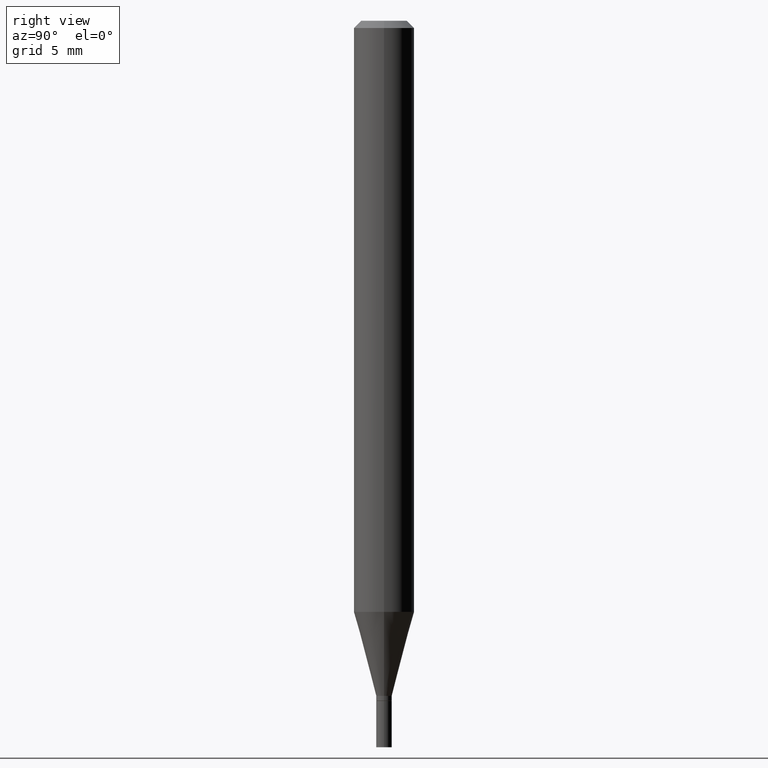
[diagram: clean part render]
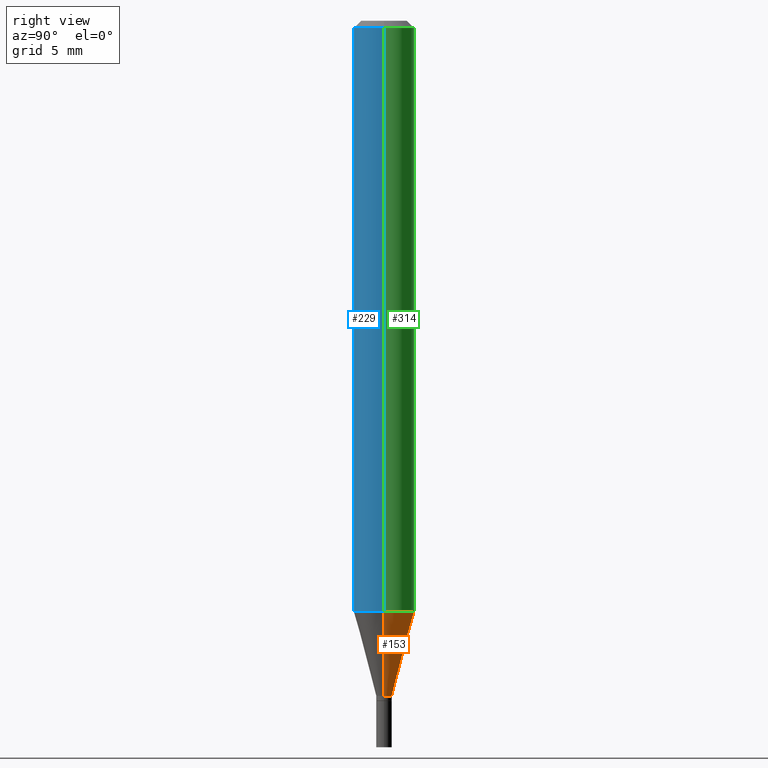
[diagram: same view with three faces highlighted in distinct colors, each labeled with its STEP entity id]
A machine part, right view with three faces highlighted in distinct colors.
Their STEP definitions:

[orange] entity #153 — the highlighted conical surface has half-angle 15 deg.
#5 = DIRECTION ( 'NONE',  ( 0.2588190451025213501, 1.565188264969621968E-15, 0.9659258262890682012 ) ) ;
#31 = CARTESIAN_POINT ( 'NONE',  ( 0.01599999999999992401, -4.978852389190325393E-15, -1.394000000000000128 ) ) ;
#34 = ORIENTED_EDGE ( 'NONE', *, *, #198, .T. ) ;
#42 = VERTEX_POINT ( 'NONE', #52 ) ;
#52 = CARTESIAN_POINT ( 'NONE',  ( -0.01599999999999992401, -4.285280493868398751E-15, -1.394000000000000128 ) ) ;
#63 = CARTESIAN_POINT ( 'NONE',  ( -0.01599999999999992401, -4.753438148625730668E-15, -1.394000000000000128 ) ) ;
#83 = VERTEX_POINT ( 'NONE', #332 ) ;
#97 = LINE ( 'NONE', #63, #150 ) ;
#100 = FACE_OUTER_BOUND ( 'NONE', #298, .T. ) ;
#102 = LINE ( 'NONE', #31, #322 ) ;
#119 = ORIENTED_EDGE ( 'NONE', *, *, #372, .F. ) ;
#150 = VECTOR ( 'NONE', #330, 39.37007874015747433 ) ;
#153 = ADVANCED_FACE ( 'NONE', ( #100 ), #451, .T. ) ;
#178 = CARTESIAN_POINT ( 'NONE',  ( 0.01599999999999992401, -4.978852389190325393E-15, -1.394000000000000128 ) ) ;
#182 = AXIS2_PLACEMENT_3D ( 'NONE', #228, #375, #274 ) ;
#190 = EDGE_CURVE ( 'NONE', #373, #42, #277, .T. ) ;
#198 = EDGE_CURVE ( 'NONE', #42, #83, #97, .T. ) ;
#200 = ORIENTED_EDGE ( 'NONE', *, *, #190, .T. ) ;
#204 = ORIENTED_EDGE ( 'NONE', *, *, #439, .F. ) ;
#210 = DIRECTION ( 'NONE',  ( 1.000000000000000000, -6.982962677686244622E-15, 0.000000000000000000 ) ) ;
#212 = DIRECTION ( 'NONE',  ( -2.445468806185136597E-29, 3.491481338843145583E-15, 1.000000000000000000 ) ) ;
#222 = AXIS2_PLACEMENT_3D ( 'NONE', #394, #358, #210 ) ;
#228 = CARTESIAN_POINT ( 'NONE',  ( 2.984595972587221379E-29, -4.261212048961128661E-15, -1.220459637448047641 ) ) ;
#250 = DIRECTION ( 'NONE',  ( 1.000000000000000000, -6.982962677686244622E-15, 0.000000000000000000 ) ) ;
#274 = DIRECTION ( 'NONE',  ( 1.000000000000000000, -6.982962677686262766E-15, 0.000000000000000000 ) ) ;
#277 = CIRCLE ( 'NONE', #222, 0.01599999999999992401 ) ;
#290 = CIRCLE ( 'NONE', #182, 0.06250000000000000000 ) ;
#298 = EDGE_LOOP ( 'NONE', ( #200, #34, #119, #204 ) ) ;
#322 = VECTOR ( 'NONE', #5, 39.37007874015747433 ) ;
#330 = DIRECTION ( 'NONE',  ( -0.2588190451025213501, 5.211531920934551042E-15, 0.9659258262890682012 ) ) ;
#332 = CARTESIAN_POINT ( 'NONE',  ( -0.06250000000000000000, -3.817122839111066834E-15, -1.220459637448047641 ) ) ;
#349 = VERTEX_POINT ( 'NONE', #419 ) ;
#355 = CARTESIAN_POINT ( 'NONE',  ( 3.408983515822080869E-29, -4.867124986347346010E-15, -1.394000000000000128 ) ) ;
#358 = DIRECTION ( 'NONE',  ( -2.445468806185136597E-29, 3.491481338843145583E-15, 1.000000000000000000 ) ) ;
#372 = EDGE_CURVE ( 'NONE', #349, #83, #290, .T. ) ;
#373 = VERTEX_POINT ( 'NONE', #178 ) ;
#375 = DIRECTION ( 'NONE',  ( -2.445468806185136597E-29, 3.491481338843145583E-15, 1.000000000000000000 ) ) ;
#394 = CARTESIAN_POINT ( 'NONE',  ( 3.408983515822080869E-29, -4.867124986347346010E-15, -1.394000000000000128 ) ) ;
#419 = CARTESIAN_POINT ( 'NONE',  ( 0.06250000000000000000, -4.697647216316520331E-15, -1.220459637448047641 ) ) ;
#439 = EDGE_CURVE ( 'NONE', #373, #349, #102, .T. ) ;
#445 = AXIS2_PLACEMENT_3D ( 'NONE', #355, #212, #250 ) ;
#451 = CONICAL_SURFACE ( 'NONE', #445, 0.01599999999999992401, 0.2617993877991500740 ) ;

[blue] entity #229 — the highlighted cylindrical surface (edge-blend (fillet) strip) has radius 1.5875 mm, axis along (-0, 0, 1).
#8 = CARTESIAN_POINT ( 'NONE',  ( 2.984595972587221379E-29, -4.261212048961128661E-15, -1.220459637448047641 ) ) ;
#37 = AXIS2_PLACEMENT_3D ( 'NONE', #246, #363, #57 ) ;
#38 = VECTOR ( 'NONE', #403, 39.37007874015748143 ) ;
#56 = LINE ( 'NONE', #463, #248 ) ;
#57 = DIRECTION ( 'NONE',  ( 1.000000000000000000, -6.982962677686266711E-15, 4.876176775795935793E-29 ) ) ;
#68 = CIRCLE ( 'NONE', #209, 0.06250000000000000000 ) ;
#72 = ORIENTED_EDGE ( 'NONE', *, *, #294, .F. ) ;
#83 = VERTEX_POINT ( 'NONE', #332 ) ;
#114 = ORIENTED_EDGE ( 'NONE', *, *, #151, .T. ) ;
#115 = DIRECTION ( 'NONE',  ( 1.000000000000000000, -6.982962677686262766E-15, 0.000000000000000000 ) ) ;
#139 = CARTESIAN_POINT ( 'NONE',  ( -0.06250000000000000000, -1.712702924671825451E-15, -0.01499999999999999944 ) ) ;
#147 = DIRECTION ( 'NONE',  ( -2.445468806185136597E-29, 3.491481338843145583E-15, 1.000000000000000000 ) ) ;
#148 = EDGE_LOOP ( 'NONE', ( #381, #386, #114, #72 ) ) ;
#151 = EDGE_CURVE ( 'NONE', #349, #196, #56, .T. ) ;
#155 = DIRECTION ( 'NONE',  ( -2.445468806185136597E-29, 3.491481338843145583E-15, 1.000000000000000000 ) ) ;
#196 = VERTEX_POINT ( 'NONE', #286 ) ;
#209 = AXIS2_PLACEMENT_3D ( 'NONE', #8, #155, #115 ) ;
#215 = FACE_OUTER_BOUND ( 'NONE', #148, .T. ) ;
#226 = VERTEX_POINT ( 'NONE', #139 ) ;
#229 = ADVANCED_FACE ( 'NONE', ( #215 ), #254, .T. ) ;
#246 = CARTESIAN_POINT ( 'NONE',  ( 0.000000000000000000, 0.000000000000000000, 0.000000000000000000 ) ) ;
#247 = DIRECTION ( 'NONE',  ( -2.445468806185136877E-29, 3.491481338843145188E-15, 1.000000000000000000 ) ) ;
#248 = VECTOR ( 'NONE', #247, 39.37007874015748143 ) ;
#254 = CYLINDRICAL_SURFACE ( 'NONE', #37, 0.06250000000000000000 ) ;
#286 = CARTESIAN_POINT ( 'NONE',  ( 0.06250000000000000000, -4.888073874380388472E-16, -0.01499999999999999944 ) ) ;
#288 = CIRCLE ( 'NONE', #413, 0.06250000000000000000 ) ;
#294 = EDGE_CURVE ( 'NONE', #226, #196, #288, .T. ) ;
#296 = DIRECTION ( 'NONE',  ( 1.000000000000000000, -6.982962677686266711E-15, 0.000000000000000000 ) ) ;
#332 = CARTESIAN_POINT ( 'NONE',  ( -0.06250000000000000000, -3.817122839111066834E-15, -1.220459637448047641 ) ) ;
#345 = CARTESIAN_POINT ( 'NONE',  ( 3.668203209277705088E-31, -5.237222008264718399E-17, -0.01499999999999999944 ) ) ;
#347 = EDGE_CURVE ( 'NONE', #83, #349, #68, .T. ) ;
#349 = VERTEX_POINT ( 'NONE', #419 ) ;
#363 = DIRECTION ( 'NONE',  ( -2.445468806185136597E-29, 3.491481338843145583E-15, 1.000000000000000000 ) ) ;
#381 = ORIENTED_EDGE ( 'NONE', *, *, #452, .F. ) ;
#386 = ORIENTED_EDGE ( 'NONE', *, *, #347, .T. ) ;
#403 = DIRECTION ( 'NONE',  ( -2.445468806185136877E-29, 3.491481338843145188E-15, 1.000000000000000000 ) ) ;
#406 = CARTESIAN_POINT ( 'NONE',  ( -0.06250000000000000000, 4.440892098500626162E-16, -3.074334431409316114E-30 ) ) ;
#413 = AXIS2_PLACEMENT_3D ( 'NONE', #345, #147, #296 ) ;
#419 = CARTESIAN_POINT ( 'NONE',  ( 0.06250000000000000000, -4.697647216316520331E-15, -1.220459637448047641 ) ) ;
#444 = LINE ( 'NONE', #406, #38 ) ;
#452 = EDGE_CURVE ( 'NONE', #83, #226, #444, .T. ) ;
#463 = CARTESIAN_POINT ( 'NONE',  ( 0.06250000000000000000, -4.364351673553916694E-16, 3.047610484872459871E-30 ) ) ;

[green] entity #314 — the highlighted cylindrical surface (edge-blend (fillet) strip) has radius 1.5875 mm, axis along (-0, 0, 1).
#13 = DIRECTION ( 'NONE',  ( -2.445468806185136597E-29, 3.491481338843145583E-15, 1.000000000000000000 ) ) ;
#38 = VECTOR ( 'NONE', #403, 39.37007874015748143 ) ;
#49 = EDGE_CURVE ( 'NONE', #196, #226, #242, .T. ) ;
#56 = LINE ( 'NONE', #463, #248 ) ;
#83 = VERTEX_POINT ( 'NONE', #332 ) ;
#136 = CYLINDRICAL_SURFACE ( 'NONE', #173, 0.06250000000000000000 ) ;
#139 = CARTESIAN_POINT ( 'NONE',  ( -0.06250000000000000000, -1.712702924671825451E-15, -0.01499999999999999944 ) ) ;
#151 = EDGE_CURVE ( 'NONE', #349, #196, #56, .T. ) ;
#173 = AXIS2_PLACEMENT_3D ( 'NONE', #272, #13, #232 ) ;
#182 = AXIS2_PLACEMENT_3D ( 'NONE', #228, #375, #274 ) ;
#196 = VERTEX_POINT ( 'NONE', #286 ) ;
#199 = ORIENTED_EDGE ( 'NONE', *, *, #49, .F. ) ;
#219 = ORIENTED_EDGE ( 'NONE', *, *, #452, .T. ) ;
#221 = ORIENTED_EDGE ( 'NONE', *, *, #151, .F. ) ;
#226 = VERTEX_POINT ( 'NONE', #139 ) ;
#228 = CARTESIAN_POINT ( 'NONE',  ( 2.984595972587221379E-29, -4.261212048961128661E-15, -1.220459637448047641 ) ) ;
#232 = DIRECTION ( 'NONE',  ( 1.000000000000000000, -6.982962677686266711E-15, 4.876176775795935793E-29 ) ) ;
#242 = CIRCLE ( 'NONE', #384, 0.06250000000000000000 ) ;
#244 = DIRECTION ( 'NONE',  ( 1.000000000000000000, -6.982962677686266711E-15, 0.000000000000000000 ) ) ;
#247 = DIRECTION ( 'NONE',  ( -2.445468806185136877E-29, 3.491481338843145188E-15, 1.000000000000000000 ) ) ;
#248 = VECTOR ( 'NONE', #247, 39.37007874015748143 ) ;
#272 = CARTESIAN_POINT ( 'NONE',  ( 0.000000000000000000, 0.000000000000000000, 0.000000000000000000 ) ) ;
#273 = ORIENTED_EDGE ( 'NONE', *, *, #372, .T. ) ;
#274 = DIRECTION ( 'NONE',  ( 1.000000000000000000, -6.982962677686262766E-15, 0.000000000000000000 ) ) ;
#286 = CARTESIAN_POINT ( 'NONE',  ( 0.06250000000000000000, -4.888073874380388472E-16, -0.01499999999999999944 ) ) ;
#290 = CIRCLE ( 'NONE', #182, 0.06250000000000000000 ) ;
#314 = ADVANCED_FACE ( 'NONE', ( #365 ), #136, .T. ) ;
#319 = CARTESIAN_POINT ( 'NONE',  ( 3.668203209277705088E-31, -5.237222008264718399E-17, -0.01499999999999999944 ) ) ;
#332 = CARTESIAN_POINT ( 'NONE',  ( -0.06250000000000000000, -3.817122839111066834E-15, -1.220459637448047641 ) ) ;
#349 = VERTEX_POINT ( 'NONE', #419 ) ;
#365 = FACE_OUTER_BOUND ( 'NONE', #428, .T. ) ;
#372 = EDGE_CURVE ( 'NONE', #349, #83, #290, .T. ) ;
#375 = DIRECTION ( 'NONE',  ( -2.445468806185136597E-29, 3.491481338843145583E-15, 1.000000000000000000 ) ) ;
#384 = AXIS2_PLACEMENT_3D ( 'NONE', #319, #459, #244 ) ;
#403 = DIRECTION ( 'NONE',  ( -2.445468806185136877E-29, 3.491481338843145188E-15, 1.000000000000000000 ) ) ;
#406 = CARTESIAN_POINT ( 'NONE',  ( -0.06250000000000000000, 4.440892098500626162E-16, -3.074334431409316114E-30 ) ) ;
#419 = CARTESIAN_POINT ( 'NONE',  ( 0.06250000000000000000, -4.697647216316520331E-15, -1.220459637448047641 ) ) ;
#428 = EDGE_LOOP ( 'NONE', ( #273, #219, #199, #221 ) ) ;
#444 = LINE ( 'NONE', #406, #38 ) ;
#452 = EDGE_CURVE ( 'NONE', #83, #226, #444, .T. ) ;
#459 = DIRECTION ( 'NONE',  ( -2.445468806185136597E-29, 3.491481338843145583E-15, 1.000000000000000000 ) ) ;
#463 = CARTESIAN_POINT ( 'NONE',  ( 0.06250000000000000000, -4.364351673553916694E-16, 3.047610484872459871E-30 ) ) ;